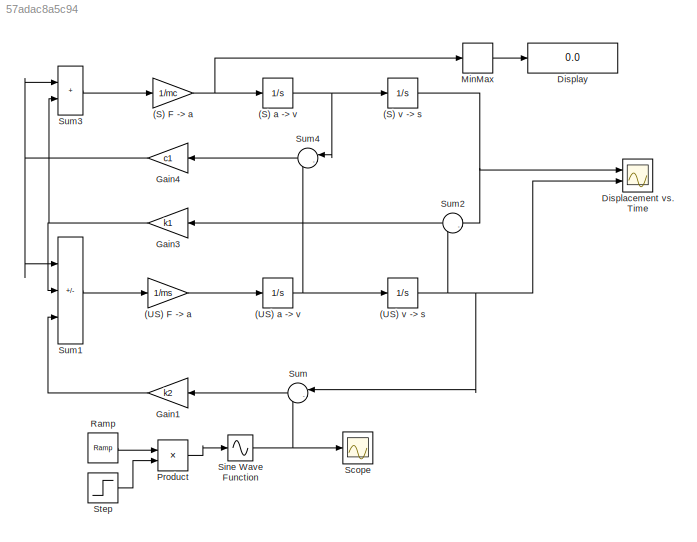
MODEL slx_57adac8a5c94
KIND model
CONFIG AbsTol = auto
CONFIG EnableMultiTasking = off
CONFIG FixedStep = auto
CONFIG MaxStep = auto
CONFIG MinStep = auto
CONFIG RelTol = 1e-3
CONFIG SampleTimeConstraint = Unconstrained
CONFIG SolverName = VariableStepAuto
CONFIG StartTime = 0.0
CONFIG StopTime = 10
BLOCK [Gain] (S) F -> a
  Gain = 1/mc
BLOCK [Integrator] (S) a -> v
  Ports = [1, 1]
BLOCK [Integrator] (S) v -> s
  Ports = [1, 1]
BLOCK [Gain] (US) F -> a
  Gain = 1/ms
BLOCK [Integrator] (US) a -> v
  Ports = [1, 1]
BLOCK [Integrator] (US) v -> s
  Ports = [1, 1]
BLOCK [Scope] Displacement vs. Time
  Floating = off
  NumInputPorts = 2
  Ports = [2]
  ScopeSpecificationString = Simulink.scopes.TimeScopeBlockCfg('CurrentConfiguration', extmgr.ConfigurationSet(extmgr.Configuration('Core','General UI',true),extmgr.Configuration('Core','Source UI',true),extmgr.Configuration('Sources','WiredSimulink',true),extmgr.Configuration('Visuals','Time Domain',true,'SerializedDisplays',{struct('MinYLimReal','-0.19831','MaxYLimReal','0.29999','YLabelReal','','MinYLimMag','0.00000','MaxY...<+1377ch>
BLOCK [Display] Display
  Decimation = 1
  Ports = [1]
BLOCK [Gain] Gain1
  Gain = k2
BLOCK [Gain] Gain3
  Gain = k1
BLOCK [Gain] Gain4
  Gain = c1
BLOCK [MinMax] MinMax
  Function = max
  Ports = [1, 1]
BLOCK [Product] Product
  Ports = [2, 1]
BLOCK [Reference] Ramp  REF=simulink/Sources/Ramp
  Ports = [0, 1]
  SourceBlock = simulink/Sources/Ramp
  SourceProductBaseCode = SL
  SourceType = Ramp
BLOCK [Scope] Scope
  Floating = off
  NumInputPorts = 1
  Ports = [1]
  ScopeSpecificationString = Simulink.scopes.TimeScopeBlockCfg('CurrentConfiguration', extmgr.ConfigurationSet(extmgr.Configuration('Core','General UI',true),extmgr.Configuration('Core','Source UI',true),extmgr.Configuration('Sources','WiredSimulink',true,'DataLoggingVariableName','ScopeData1'),extmgr.Configuration('Visuals','Time Domain',true,'SerializedDisplays',{struct('MinYLimReal','-1.24578','MaxYLimReal','1.24881','YLab...<+1406ch>
BLOCK [Sin] Sine Wave Function
  Frequency = 2*pi
  Ports = [1, 1]
  SampleTime = 0
  TimeSource = Use external signal
BLOCK [Step] Step
  After = 15
  Before = 5
  SampleTime = 0
  Time = 5
BLOCK [Sum] Sum
  Inputs = |-+
  Ports = [2, 1]
BLOCK [Sum] Sum1
  IconShape = rectangular
  Inputs = |--+
  Ports = [3, 1]
BLOCK [Sum] Sum2
  Inputs = |-+
  Ports = [2, 1]
BLOCK [Sum] Sum3
  IconShape = rectangular
  Ports = [2, 1]
BLOCK [Sum] Sum4
  Inputs = |-+
  Ports = [2, 1]
NET (S) F -> a:1 -> (S) a -> v:1, MinMax:1
NET (S) a -> v:1 -> (S) v -> s:1, Sum4:1
NET (S) v -> s:1 -> Displacement vs. Time:1, Sum2:1
LINE (US) F -> a:1 -> (US) a -> v:1
NET (US) a -> v:1 -> (US) v -> s:1, Sum4:2
NET (US) v -> s:1 -> Displacement vs. Time:2, Sum2:2, Sum:1
LINE Gain1:1 -> Sum1:3
NET Gain3:1 -> Sum1:2, Sum3:2
NET Gain4:1 -> Sum1:1, Sum3:1
LINE MinMax:1 -> Display:1
LINE Product:1 -> Sine Wave Function:1
LINE Ramp:1 -> Product:1
NET Sine Wave Function:1 -> Scope:1, Sum:2
LINE Step:1 -> Product:2
LINE Sum1:1 -> (US) F -> a:1
LINE Sum2:1 -> Gain3:1
LINE Sum3:1 -> (S) F -> a:1
LINE Sum4:1 -> Gain4:1
LINE Sum:1 -> Gain1:1
note: NET lines group one-source signal fan-out (src -> all destinations, sorted); 1:1 wires keep LINE
